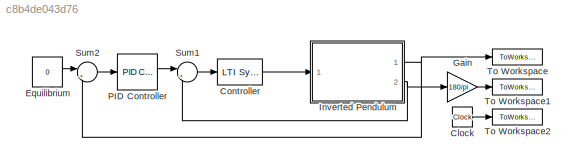
MODEL slx_c8b4de043d76
KIND model
CONFIG AbsTol = auto
CONFIG EnableMultiTasking = on
CONFIG FixedStep = 1e-3
CONFIG MaxStep = auto
CONFIG MinStep = auto
CONFIG RelTol = 1e-3
CONFIG SampleTimeConstraint = Unconstrained
CONFIG Solver = ode45
CONFIG SolverName = ode45
CONFIG StartTime = 0.0
CONFIG StopTime = 20
BLOCK [Clock] Clock
BLOCK [Reference] Controller  REF=cstblocks/LTI System
  Ports = [1, 1]
  SourceBlock = cstblocks/LTI System
  SourceProductBaseCode = CT
  SourceType = LTI Block
BLOCK [Constant] Equilibrium
  Value = 0
BLOCK [Gain] Gain
  Gain = 180/pi
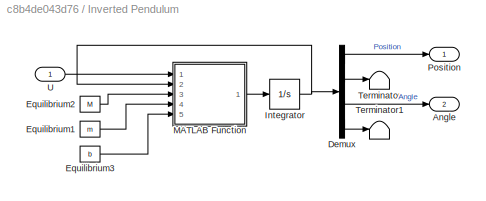
BLOCK [SubSystem] Inverted Pendulum
  Ports = [1, 2]
  RequestExecContextInheritance = off
BLOCK [Outport] Inverted Pendulum/Angle
  Port = 2
BLOCK [Demux] Inverted Pendulum/Demux
  Ports = [1, 4]
BLOCK [Constant] Inverted Pendulum/Equilibrium1
  Value = m
BLOCK [Constant] Inverted Pendulum/Equilibrium2
  Value = M
BLOCK [Constant] Inverted Pendulum/Equilibrium3
  Value = b
BLOCK [Integrator] Inverted Pendulum/Integrator
  InitialCondition = [0;0;pi/3;0]
  Ports = [1, 1]
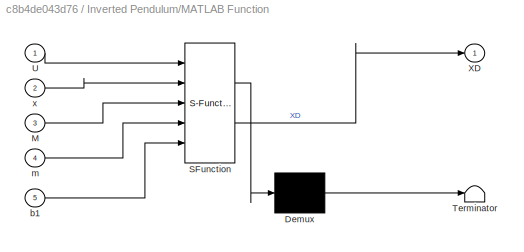
BLOCK [SubSystem] Inverted Pendulum/MATLAB Function
  ErrorFcn = Stateflow.Translate.translate
  PermitHierarchicalResolution = ExplicitOnly
  Ports = [5, 1]
  RequestExecContextInheritance = off
  SFBlockType = MATLAB Function
  TreatAsAtomicUnit = on
BLOCK [Demux] Inverted Pendulum/MATLAB Function/ Demux 
  Outputs = 1
  Ports = [1, 1]
BLOCK [S-Function] Inverted Pendulum/MATLAB Function/ SFunction 
  EnableBusSupport = on
  FunctionName = sf_sfun
  PortCounts = [5 2]
  Ports = [5, 2]
  SFcnIsStateOwnerBlock = off
  SFunctionDeploymentMode = off
  Tag = Stateflow S-Function 2
BLOCK [Terminator] Inverted Pendulum/MATLAB Function/ Terminator 
BLOCK [Inport] Inverted Pendulum/MATLAB Function/M
  Port = 3
BLOCK [Inport] Inverted Pendulum/MATLAB Function/U
BLOCK [Outport] Inverted Pendulum/MATLAB Function/XD
BLOCK [Inport] Inverted Pendulum/MATLAB Function/b1
  Port = 5
BLOCK [Inport] Inverted Pendulum/MATLAB Function/m
  Port = 4
BLOCK [Inport] Inverted Pendulum/MATLAB Function/x
  Port = 2
BLOCK [Outport] Inverted Pendulum/Position
BLOCK [Terminator] Inverted Pendulum/Terminator
BLOCK [Terminator] Inverted Pendulum/Terminator1
BLOCK [Inport] Inverted Pendulum/U
BLOCK [Reference] PID Controller  REF=simulink/Continuous/PID Controller
  Ports = [1, 1]
  SourceBlock = simulink/Continuous/PID Controller
  SourceProductBaseCode = SL
  SourceType = PID 1dof
BLOCK [Sum] Sum1
  Inputs = |+-
  Ports = [2, 1]
BLOCK [Sum] Sum2
  Inputs = |+-
  Ports = [2, 1]
BLOCK [ToWorkspace] To Workspace
  FixptAsFi = on
  MaxDataPoints = inf
  Ports = [1]
  SampleTime = -1
  VariableName = position
BLOCK [ToWorkspace] To Workspace1
  FixptAsFi = on
  MaxDataPoints = inf
  NameLocation = top
  Ports = [1]
  SampleTime = -1
  VariableName = angle
BLOCK [ToWorkspace] To Workspace2
  FixptAsFi = on
  MaxDataPoints = inf
  NameLocation = top
  Ports = [1]
  SampleTime = -1
  VariableName = time
LINE Clock:1 -> To Workspace2:1
LINE Controller:1 -> Inverted Pendulum:1
LINE Equilibrium:1 -> Sum2:1
LINE Gain:1 -> To Workspace1:1
LINE Inverted Pendulum/Demux:1 -> Inverted Pendulum/Position:1
LINE Inverted Pendulum/Demux:2 -> Inverted Pendulum/Terminator:1
LINE Inverted Pendulum/Demux:3 -> Inverted Pendulum/Angle:1
LINE Inverted Pendulum/Demux:4 -> Inverted Pendulum/Terminator1:1
LINE Inverted Pendulum/Equilibrium1:1 -> Inverted Pendulum/MATLAB Function:4
LINE Inverted Pendulum/Equilibrium2:1 -> Inverted Pendulum/MATLAB Function:3
LINE Inverted Pendulum/Equilibrium3:1 -> Inverted Pendulum/MATLAB Function:5
NET Inverted Pendulum/Integrator:1 -> Inverted Pendulum/Demux:1, Inverted Pendulum/MATLAB Function:2
LINE Inverted Pendulum/MATLAB Function:1 -> Inverted Pendulum/Integrator:1
LINE Inverted Pendulum/U:1 -> Inverted Pendulum/MATLAB Function:1
NET Inverted Pendulum:1 -> Sum2:2, To Workspace:1
NET Inverted Pendulum:2 -> Gain:1, Sum1:2
LINE PID Controller:1 -> Sum1:1
LINE Sum1:1 -> Controller:1
LINE Sum2:1 -> PID Controller:1
note: NET lines group one-source signal fan-out (src -> all destinations, sorted); 1:1 wires keep LINE
CHART Inverted Pendulum/MATLAB Function states=1 transitions=1
  STATE_LABEL 'eML_blk_kernel()'
  STATE_LABEL 'SCRIPT:\nfunction XD = fcn(U,x,M,m,b1)\nl  = 0.5;\nb1 = 0.05;\ng  = 9.81;\n\n%% assign states\ny  = x(1);\ndy = x(2);\ntheta  = x(3);\ndtheta = x(4);\n\n%% assign inputs\nF = U(1);\n%% Compute Derivatives\nydot     = dy;\nthetadot = dtheta;\n\nM = [M+m, m*(l/2)*cos(theta);...\n     m*(l/2)*cos(theta), m*(l^2)/4];\n \nc = [m*(l/2)*thetadot^2*sin(theta) + F - b1*ydot;...\n     m*g*(l/2)*sin(theta)];\n \ntmp = M\\c;\n\nyddot =...<+85ch>'
CHART  states=0 transitions=0
